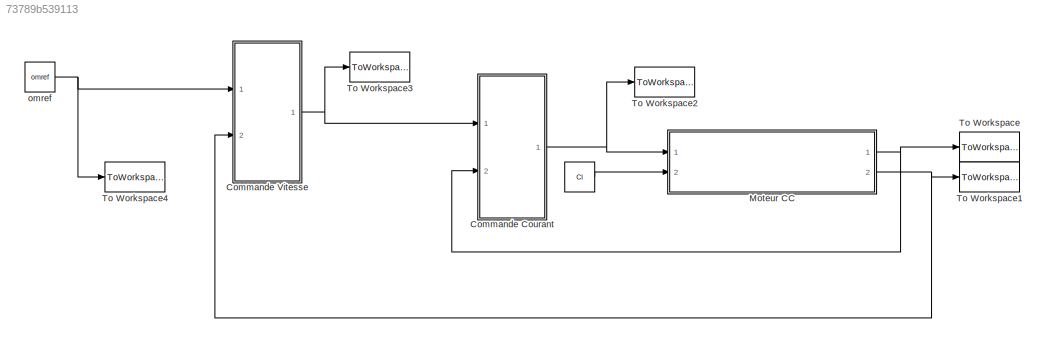
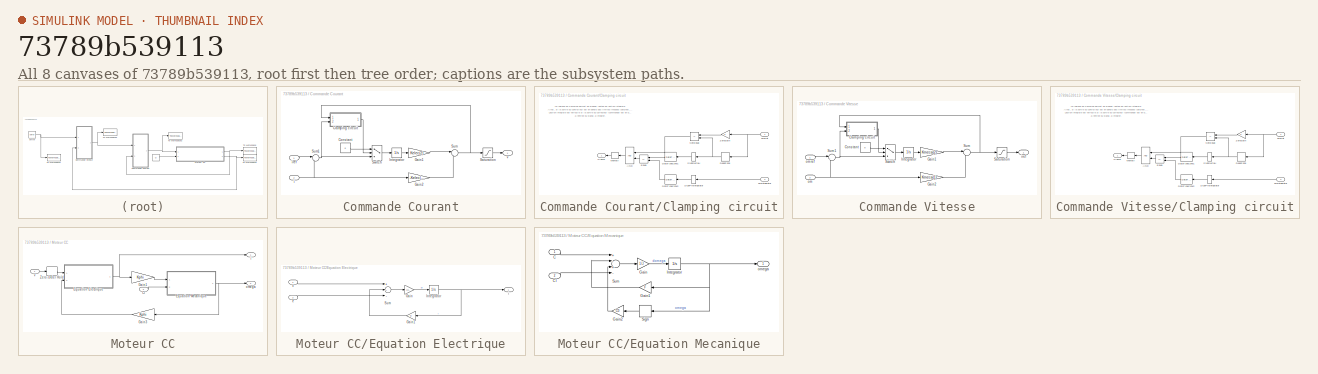
[diagram: thumbnail index - all 8 canvases of the model, root first then tree order]
MODEL slx_73789b539113
KIND model
CONFIG AbsTol = auto
CONFIG EnableMultiTasking = off
CONFIG FixedStep = auto
CONFIG MaxStep = 1e-4
CONFIG MinStep = auto
CONFIG RelTol = 1e-3
CONFIG SampleTimeConstraint = Unconstrained
CONFIG Solver = VariableStepAuto
CONFIG SolverName = VariableStepAuto
CONFIG StartTime = 0.0
CONFIG StopTime = Tf
BLOCK [Constant]  
  Value = Cl
BLOCK [SubSystem] Commande Courant
  Ports = [2, 1]
  RequestExecContextInheritance = off
  Variant = off
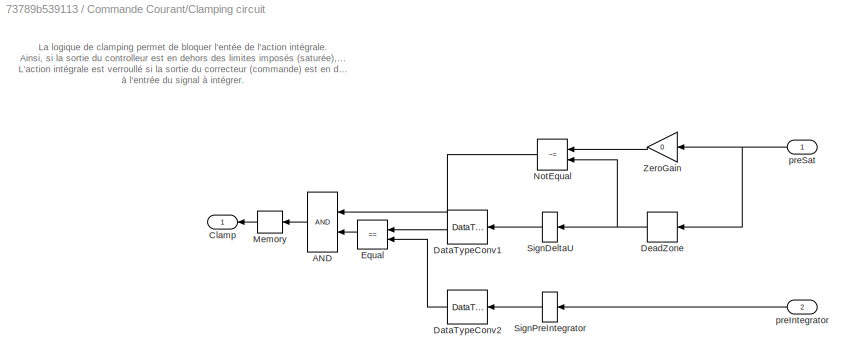
BLOCK [SubSystem] Commande Courant/Clamping circuit
  Ports = [2, 1]
  RequestExecContextInheritance = off
  Variant = off
BLOCK [Logic] Commande Courant/Clamping circuit/AND
  DisableCoverage = on
  Ports = [2, 1]
BLOCK [Outport] Commande Courant/Clamping circuit/Clamp
  DisableCoverage = on
  IconDisplay = Port number
BLOCK [DataTypeConversion] Commande Courant/Clamping circuit/DataTypeConv1
  DisableCoverage = on
  LockScale = on
  OutDataTypeStr = int8
BLOCK [DataTypeConversion] Commande Courant/Clamping circuit/DataTypeConv2
  DisableCoverage = on
  OutDataTypeStr = int8
  RndMeth = Floor
  SaturateOnIntegerOverflow = off
BLOCK [DeadZone] Commande Courant/Clamping circuit/DeadZone
  DisableCoverage = on
  LowerValue = Vmin
  SaturateOnIntegerOverflow = off
  UpperValue = Vmax
BLOCK [RelationalOperator] Commande Courant/Clamping circuit/Equal
  DisableCoverage = on
  Operator = ==
  Ports = [2, 1]
BLOCK [Memory] Commande Courant/Clamping circuit/Memory
  DisableCoverage = on
BLOCK [RelationalOperator] Commande Courant/Clamping circuit/NotEqual
  DisableCoverage = on
  Operator = ~=
  Ports = [2, 1]
BLOCK [Signum] Commande Courant/Clamping circuit/SignDeltaU
  DisableCoverage = on
BLOCK [Signum] Commande Courant/Clamping circuit/SignPreIntegrator
  DisableCoverage = on
BLOCK [Gain] Commande Courant/Clamping circuit/ZeroGain
  DisableCoverage = on
  Gain = 0
BLOCK [Inport] Commande Courant/Clamping circuit/preIntegrator
  DisableCoverage = on
  IconDisplay = Port number
  Port = 2
  VarSizeSig = No
BLOCK [Inport] Commande Courant/Clamping circuit/preSat
  DisableCoverage = on
  IconDisplay = Port number
BLOCK [Constant] Commande Courant/Constant
  Value = 0
BLOCK [Gain] Commande Courant/Gain1
  Gain = Kelec(2)
  OutDataTypeStr = Inherit: Inherit via internal rule
  ParamDataTypeStr = Inherit: Inherit via internal rule
  SaturateOnIntegerOverflow = off
BLOCK [Gain] Commande Courant/Gain2
  Gain = -Kelec(1)
  OutDataTypeStr = Inherit: Inherit via internal rule
  ParamDataTypeStr = Inherit: Inherit via internal rule
  SaturateOnIntegerOverflow = off
BLOCK [Integrator] Commande Courant/Integrator
  Ports = [1, 1]
BLOCK [Saturate] Commande Courant/Saturation
  InputPortMap = u0
  LowerLimit = Vmin
  Ports = [1, 1]
  UpperLimit = Vmax
BLOCK [Sum] Commande Courant/Sum
  IconShape = round
  InputSameDT = off
  Inputs = |+-
  OutDataTypeStr = Inherit: Inherit via internal rule
  Ports = [2, 1]
  SaturateOnIntegerOverflow = off
BLOCK [Sum] Commande Courant/Sum1
  IconShape = round
  InputSameDT = off
  Inputs = |+-
  OutDataTypeStr = Inherit: Inherit via internal rule
  Ports = [2, 1]
  SaturateOnIntegerOverflow = off
BLOCK [Switch] Commande Courant/Switch
  Criteria = u2 > Threshold
  SaturateOnIntegerOverflow = off
BLOCK [Inport] Commande Courant/i
  IconDisplay = Port number
  Port = 2
BLOCK [Inport] Commande Courant/iref
  IconDisplay = Port number
BLOCK [Outport] Commande Courant/v
  IconDisplay = Port number
BLOCK [SubSystem] Commande Vitesse
  Ports = [2, 1]
  RequestExecContextInheritance = off
  Variant = off
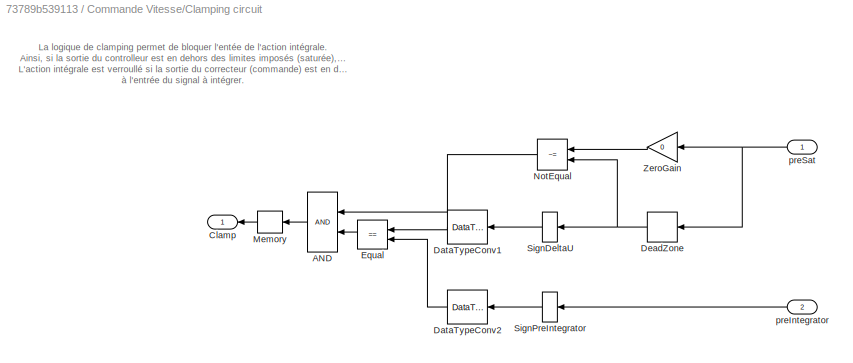
BLOCK [SubSystem] Commande Vitesse/Clamping circuit
  Ports = [2, 1]
  RequestExecContextInheritance = off
  Variant = off
BLOCK [Logic] Commande Vitesse/Clamping circuit/AND
  DisableCoverage = on
  Ports = [2, 1]
BLOCK [Outport] Commande Vitesse/Clamping circuit/Clamp
  DisableCoverage = on
  IconDisplay = Port number
BLOCK [DataTypeConversion] Commande Vitesse/Clamping circuit/DataTypeConv1
  DisableCoverage = on
  LockScale = on
  OutDataTypeStr = int8
BLOCK [DataTypeConversion] Commande Vitesse/Clamping circuit/DataTypeConv2
  DisableCoverage = on
  OutDataTypeStr = int8
  RndMeth = Floor
  SaturateOnIntegerOverflow = off
BLOCK [DeadZone] Commande Vitesse/Clamping circuit/DeadZone
  DisableCoverage = on
  LowerValue = Imin
  SaturateOnIntegerOverflow = off
  UpperValue = Imax
BLOCK [RelationalOperator] Commande Vitesse/Clamping circuit/Equal
  DisableCoverage = on
  Operator = ==
  Ports = [2, 1]
BLOCK [Memory] Commande Vitesse/Clamping circuit/Memory
  DisableCoverage = on
BLOCK [RelationalOperator] Commande Vitesse/Clamping circuit/NotEqual
  DisableCoverage = on
  Operator = ~=
  Ports = [2, 1]
BLOCK [Signum] Commande Vitesse/Clamping circuit/SignDeltaU
  DisableCoverage = on
BLOCK [Signum] Commande Vitesse/Clamping circuit/SignPreIntegrator
  DisableCoverage = on
BLOCK [Gain] Commande Vitesse/Clamping circuit/ZeroGain
  DisableCoverage = on
  Gain = 0
BLOCK [Inport] Commande Vitesse/Clamping circuit/preIntegrator
  DisableCoverage = on
  IconDisplay = Port number
  Port = 2
  VarSizeSig = No
BLOCK [Inport] Commande Vitesse/Clamping circuit/preSat
  DisableCoverage = on
  IconDisplay = Port number
BLOCK [Constant] Commande Vitesse/Constant
  Value = 0
BLOCK [Gain] Commande Vitesse/Gain1
  Gain = Kmeca(2)
  OutDataTypeStr = Inherit: Inherit via internal rule
  ParamDataTypeStr = Inherit: Inherit via internal rule
  SaturateOnIntegerOverflow = off
BLOCK [Gain] Commande Vitesse/Gain2
  Gain = Kmeca(1)
  OutDataTypeStr = Inherit: Inherit via internal rule
  ParamDataTypeStr = Inherit: Inherit via internal rule
  SaturateOnIntegerOverflow = off
BLOCK [Integrator] Commande Vitesse/Integrator
  Ports = [1, 1]
BLOCK [Saturate] Commande Vitesse/Saturation
  InputPortMap = u0
  LowerLimit = Imin
  Ports = [1, 1]
  UpperLimit = Imax
BLOCK [Sum] Commande Vitesse/Sum
  IconShape = round
  InputSameDT = off
  Inputs = |--
  OutDataTypeStr = Inherit: Inherit via internal rule
  Ports = [2, 1]
  SaturateOnIntegerOverflow = off
BLOCK [Sum] Commande Vitesse/Sum1
  IconShape = round
  InputSameDT = off
  Inputs = |+-
  OutDataTypeStr = Inherit: Inherit via internal rule
  Ports = [2, 1]
  SaturateOnIntegerOverflow = off
BLOCK [Switch] Commande Vitesse/Switch
  Criteria = u2 > Threshold
  SaturateOnIntegerOverflow = off
BLOCK [Outport] Commande Vitesse/iref
  IconDisplay = Port number
BLOCK [Inport] Commande Vitesse/om
  IconDisplay = Port number
  Port = 2
BLOCK [Inport] Commande Vitesse/omref
  IconDisplay = Port number
BLOCK [SubSystem] Moteur CC
  Ports = [2, 2]
  RequestExecContextInheritance = off
  Variant = off
BLOCK [Inport] Moteur CC/Cl
  IconDisplay = Port number
  Port = 2
BLOCK [SubSystem] Moteur CC/Equation Electrique
  Ports = [2, 1]
  RequestExecContextInheritance = off
  Variant = off
BLOCK [Gain] Moteur CC/Equation Electrique/Gain
  Gain = 1/L
  OutDataTypeStr = Inherit: Inherit via internal rule
  ParamDataTypeStr = Inherit: Inherit via internal rule
  SaturateOnIntegerOverflow = off
BLOCK [Gain] Moteur CC/Equation Electrique/Gain1
  Gain = R
  OutDataTypeStr = Inherit: Inherit via internal rule
  ParamDataTypeStr = Inherit: Inherit via internal rule
  SaturateOnIntegerOverflow = off
BLOCK [Integrator] Moteur CC/Equation Electrique/Integrator
  Ports = [1, 1]
BLOCK [Sum] Moteur CC/Equation Electrique/Sum
  InputSameDT = off
  Inputs = +--
  OutDataTypeStr = Inherit: Inherit via internal rule
  Ports = [3, 1]
  SaturateOnIntegerOverflow = off
BLOCK [Inport] Moteur CC/Equation Electrique/e
  IconDisplay = Port number
  Port = 2
BLOCK [Outport] Moteur CC/Equation Electrique/i
  IconDisplay = Port number
BLOCK [Inport] Moteur CC/Equation Electrique/v
  IconDisplay = Port number
BLOCK [SubSystem] Moteur CC/Equation Mecanique
  Ports = [2, 1]
  RequestExecContextInheritance = off
  Variant = off
BLOCK [Inport] Moteur CC/Equation Mecanique/C
  IconDisplay = Port number
BLOCK [Inport] Moteur CC/Equation Mecanique/Cl
  IconDisplay = Port number
  Port = 2
BLOCK [Gain] Moteur CC/Equation Mecanique/Gain
  Gain = 1/J
  OutDataTypeStr = Inherit: Inherit via internal rule
  ParamDataTypeStr = Inherit: Inherit via internal rule
  SaturateOnIntegerOverflow = off
BLOCK [Gain] Moteur CC/Equation Mecanique/Gain1
  Gain = F
  OutDataTypeStr = Inherit: Inherit via internal rule
  ParamDataTypeStr = Inherit: Inherit via internal rule
  SaturateOnIntegerOverflow = off
BLOCK [Gain] Moteur CC/Equation Mecanique/Gain2
  Gain = C0
  OutDataTypeStr = Inherit: Inherit via internal rule
  ParamDataTypeStr = Inherit: Inherit via internal rule
  SaturateOnIntegerOverflow = off
BLOCK [Integrator] Moteur CC/Equation Mecanique/Integrator
  Ports = [1, 1]
BLOCK [Signum] Moteur CC/Equation Mecanique/Sign
BLOCK [Sum] Moteur CC/Equation Mecanique/Sum
  InputSameDT = off
  Inputs = +-+-
  OutDataTypeStr = Inherit: Inherit via internal rule
  Ports = [4, 1]
  SaturateOnIntegerOverflow = off
BLOCK [Outport] Moteur CC/Equation Mecanique/omega
  IconDisplay = Port number
BLOCK [Gain] Moteur CC/Gain1
  Gain = Kphi
  OutDataTypeStr = Inherit: Inherit via internal rule
  ParamDataTypeStr = Inherit: Inherit via internal rule
  SaturateOnIntegerOverflow = off
BLOCK [Gain] Moteur CC/Gain3  
  Gain = Kphi
  OutDataTypeStr = Inherit: Inherit via internal rule
  ParamDataTypeStr = Inherit: Inherit via internal rule
  SaturateOnIntegerOverflow = off
BLOCK [ZeroOrderHold] Moteur CC/Zero-Order Hold
  SampleTime = Ts
BLOCK [Outport] Moteur CC/i
  IconDisplay = Port number
BLOCK [Outport] Moteur CC/omega
  IconDisplay = Port number
  Port = 2
BLOCK [Inport] Moteur CC/v
  IconDisplay = Port number
BLOCK [ToWorkspace] To Workspace
  FixptAsFi = on
  MaxDataPoints = inf
  Ports = [1]
  SampleTime = -1
  Save2DSignal = 3-D array (concatenate along third dimension)
  SaveFormat = Timeseries
  VariableName = i_o
BLOCK [ToWorkspace] To Workspace1
  FixptAsFi = on
  MaxDataPoints = inf
  Ports = [1]
  SampleTime = -1
  Save2DSignal = 3-D array (concatenate along third dimension)
  SaveFormat = Timeseries
  VariableName = omega_o
BLOCK [ToWorkspace] To Workspace2
  FixptAsFi = on
  MaxDataPoints = inf
  Ports = [1]
  SampleTime = -1
  Save2DSignal = 3-D array (concatenate along third dimension)
  SaveFormat = Timeseries
  VariableName = v_o
BLOCK [ToWorkspace] To Workspace3
  FixptAsFi = on
  MaxDataPoints = inf
  Ports = [1]
  SampleTime = -1
  Save2DSignal = 3-D array (concatenate along third dimension)
  SaveFormat = Timeseries
  VariableName = iref_o
BLOCK [ToWorkspace] To Workspace4
  FixptAsFi = on
  MaxDataPoints = inf
  Ports = [1]
  SampleTime = -1
  Save2DSignal = 3-D array (concatenate along third dimension)
  SaveFormat = Timeseries
  VariableName = omref_o
BLOCK [Constant] omref
  Value = omref
ANNOTATION Commande Courant/Clamping circuit: La logique de clamping permet de bloquer l'entée de l'action intégrale. Ainsi, si la sortie du controlleur est en dehors des limites imposés (saturée), alors l'action intégrale du correcteur est verrouyé (clamping). L'action intégrale est verroullé si la sortie du correcteur (commande) est en dehors des saturations et que le signe de cette sortie est égale à l'entrée du signal à intégrer.
ANNOTATION Commande Vitesse/Clamping circuit: La logique de clamping permet de bloquer l'entée de l'action intégrale. Ainsi, si la sortie du controlleur est en dehors des limites imposés (saturée), alors l'action intégrale du correcteur est verrouyé (clamping). L'action intégrale est verroullé si la sortie du correcteur (commande) est en dehors des saturations et que le signe de cette sortie est égale à l'entrée du signal à intégrer.
LINE  :1 -> Moteur CC:2
LINE Commande Courant/Clamping circuit/AND:1 -> Commande Courant/Clamping circuit/Memory:1
LINE Commande Courant/Clamping circuit/DataTypeConv1:1 -> Commande Courant/Clamping circuit/Equal:1
LINE Commande Courant/Clamping circuit/DataTypeConv2:1 -> Commande Courant/Clamping circuit/Equal:2
NET Commande Courant/Clamping circuit/DeadZone:1 -> Commande Courant/Clamping circuit/NotEqual:2, Commande Courant/Clamping circuit/SignDeltaU:1
LINE Commande Courant/Clamping circuit/Equal:1 -> Commande Courant/Clamping circuit/AND:2
LINE Commande Courant/Clamping circuit/Memory:1 -> Commande Courant/Clamping circuit/Clamp:1
LINE Commande Courant/Clamping circuit/NotEqual:1 -> Commande Courant/Clamping circuit/AND:1
LINE Commande Courant/Clamping circuit/SignDeltaU:1 -> Commande Courant/Clamping circuit/DataTypeConv1:1
LINE Commande Courant/Clamping circuit/SignPreIntegrator:1 -> Commande Courant/Clamping circuit/DataTypeConv2:1
LINE Commande Courant/Clamping circuit/ZeroGain:1 -> Commande Courant/Clamping circuit/NotEqual:1
LINE Commande Courant/Clamping circuit/preIntegrator:1 -> Commande Courant/Clamping circuit/SignPreIntegrator:1
NET Commande Courant/Clamping circuit/preSat:1 -> Commande Courant/Clamping circuit/DeadZone:1, Commande Courant/Clamping circuit/ZeroGain:1
LINE Commande Courant/Clamping circuit:1 -> Commande Courant/Switch:2
LINE Commande Courant/Constant:1 -> Commande Courant/Switch:1
LINE Commande Courant/Gain1:1 -> Commande Courant/Sum:1
LINE Commande Courant/Gain2:1 -> Commande Courant/Sum:2
LINE Commande Courant/Integrator:1 -> Commande Courant/Gain1:1
LINE Commande Courant/Saturation:1 -> Commande Courant/v:1
NET Commande Courant/Sum1:1 -> Commande Courant/Clamping circuit:2, Commande Courant/Switch:3
NET Commande Courant/Sum:1 -> Commande Courant/Clamping circuit:1, Commande Courant/Saturation:1
LINE Commande Courant/Switch:1 -> Commande Courant/Integrator:1
NET Commande Courant/i:1 -> Commande Courant/Gain2:1, Commande Courant/Sum1:2
LINE Commande Courant/iref:1 -> Commande Courant/Sum1:1
NET Commande Courant:1 -> Moteur CC:1, To Workspace2:1
LINE Commande Vitesse/Clamping circuit/AND:1 -> Commande Vitesse/Clamping circuit/Memory:1
LINE Commande Vitesse/Clamping circuit/DataTypeConv1:1 -> Commande Vitesse/Clamping circuit/Equal:1
LINE Commande Vitesse/Clamping circuit/DataTypeConv2:1 -> Commande Vitesse/Clamping circuit/Equal:2
NET Commande Vitesse/Clamping circuit/DeadZone:1 -> Commande Vitesse/Clamping circuit/NotEqual:2, Commande Vitesse/Clamping circuit/SignDeltaU:1
LINE Commande Vitesse/Clamping circuit/Equal:1 -> Commande Vitesse/Clamping circuit/AND:2
LINE Commande Vitesse/Clamping circuit/Memory:1 -> Commande Vitesse/Clamping circuit/Clamp:1
LINE Commande Vitesse/Clamping circuit/NotEqual:1 -> Commande Vitesse/Clamping circuit/AND:1
LINE Commande Vitesse/Clamping circuit/SignDeltaU:1 -> Commande Vitesse/Clamping circuit/DataTypeConv1:1
LINE Commande Vitesse/Clamping circuit/SignPreIntegrator:1 -> Commande Vitesse/Clamping circuit/DataTypeConv2:1
LINE Commande Vitesse/Clamping circuit/ZeroGain:1 -> Commande Vitesse/Clamping circuit/NotEqual:1
LINE Commande Vitesse/Clamping circuit/preIntegrator:1 -> Commande Vitesse/Clamping circuit/SignPreIntegrator:1
NET Commande Vitesse/Clamping circuit/preSat:1 -> Commande Vitesse/Clamping circuit/DeadZone:1, Commande Vitesse/Clamping circuit/ZeroGain:1
LINE Commande Vitesse/Clamping circuit:1 -> Commande Vitesse/Switch:2
LINE Commande Vitesse/Constant:1 -> Commande Vitesse/Switch:1
LINE Commande Vitesse/Gain1:1 -> Commande Vitesse/Sum:1
LINE Commande Vitesse/Gain2:1 -> Commande Vitesse/Sum:2
LINE Commande Vitesse/Integrator:1 -> Commande Vitesse/Gain1:1
LINE Commande Vitesse/Saturation:1 -> Commande Vitesse/iref:1
NET Commande Vitesse/Sum1:1 -> Commande Vitesse/Clamping circuit:2, Commande Vitesse/Switch:3
NET Commande Vitesse/Sum:1 -> Commande Vitesse/Clamping circuit:1, Commande Vitesse/Saturation:1
LINE Commande Vitesse/Switch:1 -> Commande Vitesse/Integrator:1
NET Commande Vitesse/om:1 -> Commande Vitesse/Gain2:1, Commande Vitesse/Sum1:2
LINE Commande Vitesse/omref:1 -> Commande Vitesse/Sum1:1
NET Commande Vitesse:1 -> Commande Courant:1, To Workspace3:1
LINE Moteur CC/Cl:1 -> Moteur CC/Equation Mecanique:2
LINE Moteur CC/Equation Electrique/Gain1:1 -> Moteur CC/Equation Electrique/Sum:2
LINE Moteur CC/Equation Electrique/Gain:1 -> Moteur CC/Equation Electrique/Integrator:1
NET Moteur CC/Equation Electrique/Integrator:1 -> Moteur CC/Equation Electrique/Gain1:1, Moteur CC/Equation Electrique/i:1
LINE Moteur CC/Equation Electrique/Sum:1 -> Moteur CC/Equation Electrique/Gain:1
LINE Moteur CC/Equation Electrique/e:1 -> Moteur CC/Equation Electrique/Sum:3
LINE Moteur CC/Equation Electrique/v:1 -> Moteur CC/Equation Electrique/Sum:1
NET Moteur CC/Equation Electrique:1 -> Moteur CC/Gain1:1, Moteur CC/i:1
LINE Moteur CC/Equation Mecanique/C:1 -> Moteur CC/Equation Mecanique/Sum:1
LINE Moteur CC/Equation Mecanique/Cl:1 -> Moteur CC/Equation Mecanique/Sum:4
LINE Moteur CC/Equation Mecanique/Gain1:1 -> Moteur CC/Equation Mecanique/Sum:2
LINE Moteur CC/Equation Mecanique/Gain2:1 -> Moteur CC/Equation Mecanique/Sum:3
LINE Moteur CC/Equation Mecanique/Gain:1 -> Moteur CC/Equation Mecanique/Integrator:1
NET Moteur CC/Equation Mecanique/Integrator:1 -> Moteur CC/Equation Mecanique/Gain1:1, Moteur CC/Equation Mecanique/Sign:1, Moteur CC/Equation Mecanique/omega:1
LINE Moteur CC/Equation Mecanique/Sign:1 -> Moteur CC/Equation Mecanique/Gain2:1
LINE Moteur CC/Equation Mecanique/Sum:1 -> Moteur CC/Equation Mecanique/Gain:1
NET Moteur CC/Equation Mecanique:1 -> Moteur CC/Gain3  :1, Moteur CC/omega:1
LINE Moteur CC/Gain1:1 -> Moteur CC/Equation Mecanique:1
LINE Moteur CC/Gain3  :1 -> Moteur CC/Equation Electrique:2
LINE Moteur CC/Zero-Order Hold:1 -> Moteur CC/Equation Electrique:1
LINE Moteur CC/v:1 -> Moteur CC/Zero-Order Hold:1
NET Moteur CC:1 -> Commande Courant:2, To Workspace:1
NET Moteur CC:2 -> Commande Vitesse:2, To Workspace1:1
NET omref:1 -> Commande Vitesse:1, To Workspace4:1
note: NET lines group one-source signal fan-out (src -> all destinations, sorted); 1:1 wires keep LINE
